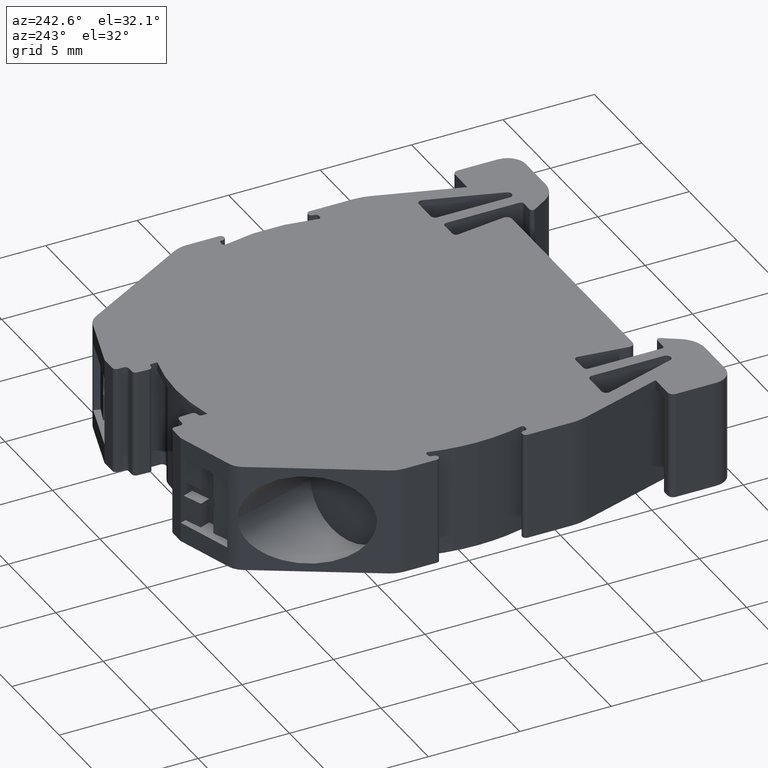
[diagram: clean part render]
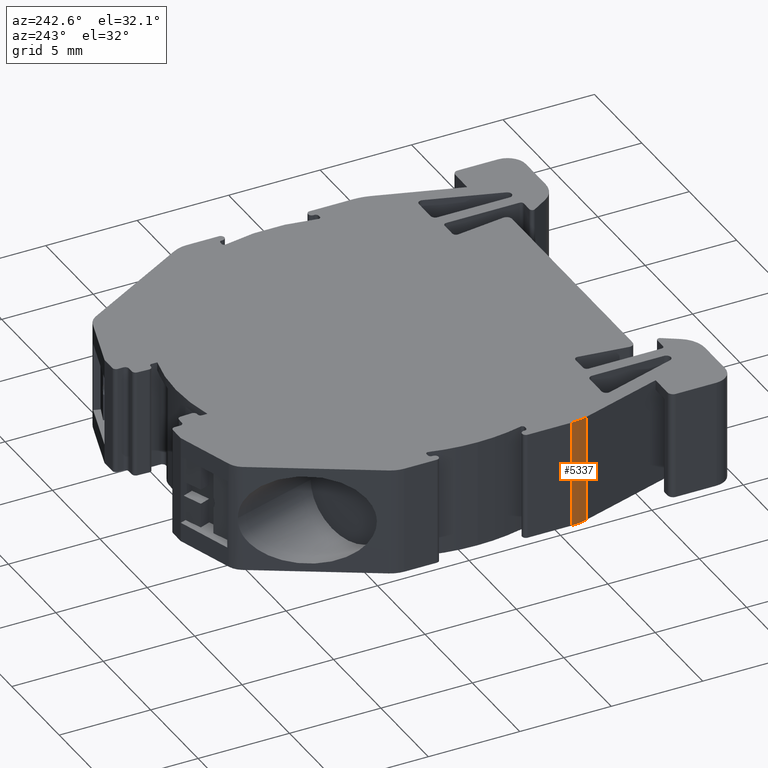
[diagram: same view with one face highlighted and labeled with its STEP entity id]
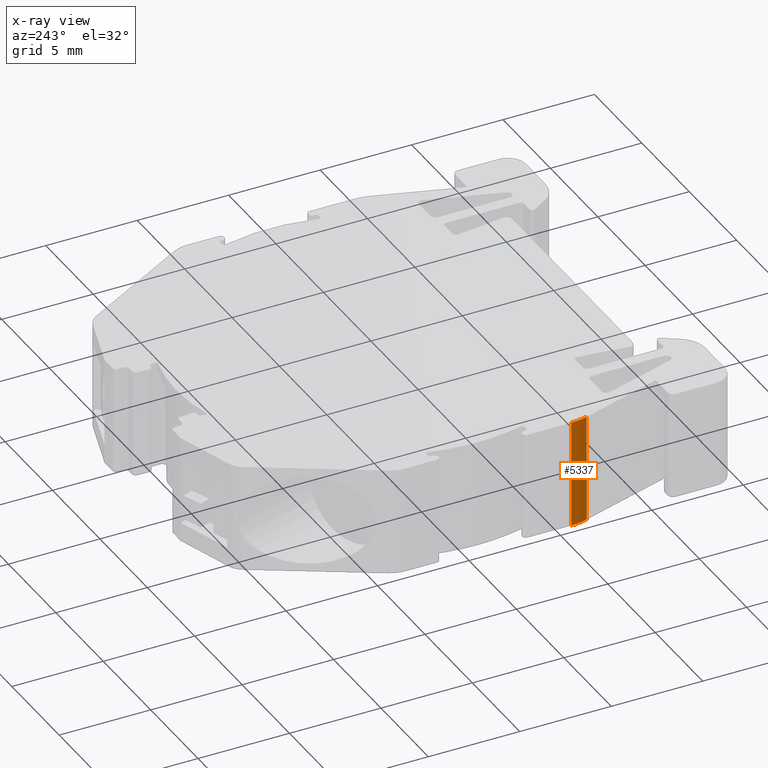
[diagram: x-ray of the same camera — body ghosted, the highlighted face saturated]
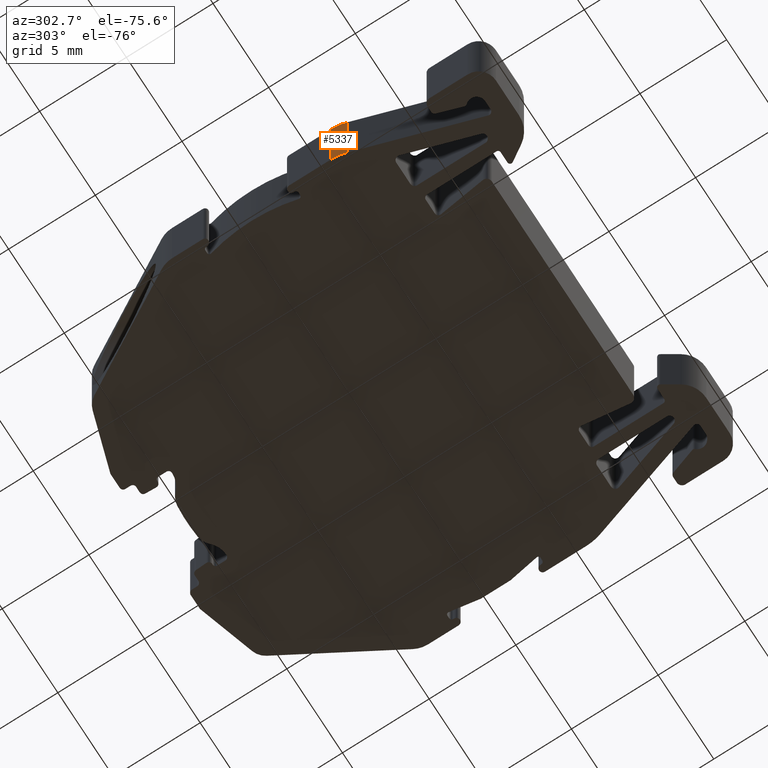
[diagram: same view with one face highlighted and labeled with its STEP entity id]
A machine part, auxiliary view. The second image highlights one B-rep face of the part: STEP entity #5337.
The next image is the same camera in x-ray: the body ghosted, the highlighted face saturated — about 0% of this face is hidden behind the body in this view.
A second angle (auxiliary view) of the same face is appended — the face is thin or edge-on in the first view.
In plain terms, the highlighted cylindrical surface (partial cylindrical patch) has radius 3 mm, axis along (0, 0, -1).
Its self-contained STEP definition (entity closure, byte-faithful):
#321 = DIRECTION ( 'NONE',  ( -1.000000000000000000, 0.0000000000000000000, 0.0000000000000000000 ) ) ;
#361 = CARTESIAN_POINT ( 'NONE',  ( 282.7859378434549700, 439.5186612704554800, -45.43000000000000000 ) ) ;
#362 = DIRECTION ( 'NONE',  ( 0.0000000000000000000, 0.0000000000000000000, -1.000000000000000000 ) ) ;
#414 = CARTESIAN_POINT ( 'NONE',  ( 282.7859378434549700, 439.5186612704554800, -51.32999999999999800 ) ) ;
#427 = DIRECTION ( 'NONE',  ( 0.0000000000000000000, 0.0000000000000000000, -1.000000000000000000 ) ) ;
#446 = DIRECTION ( 'NONE',  ( -1.000000000000000000, 0.0000000000000000000, 0.0000000000000000000 ) ) ;
#582 = LINE ( 'NONE', #597, #6312 ) ;
#583 = DIRECTION ( 'NONE',  ( 0.0000000000000000000, 0.0000000000000000000, 1.000000000000000000 ) ) ;
#597 = CARTESIAN_POINT ( 'NONE',  ( 279.7859378434544600, 439.5186611059753500, -12.95259855432815500 ) ) ;
#599 = DIRECTION ( 'NONE',  ( -0.0000000000000000000, -0.0000000000000000000, -1.000000000000000000 ) ) ;
#608 = LINE ( 'NONE', #616, #6314 ) ;
#616 = CARTESIAN_POINT ( 'NONE',  ( 279.9247869912097700, 438.6165438719423300, -12.95259855432815500 ) ) ;
#1750 = ORIENTED_EDGE ( 'NONE', *, *, #5123, .F. ) ;
#1781 = ORIENTED_EDGE ( 'NONE', *, *, #5131, .F. ) ;
#1820 = ORIENTED_EDGE ( 'NONE', *, *, #5049, .T. ) ;
#1822 = ORIENTED_EDGE ( 'NONE', *, *, #5074, .F. ) ;
#1904 = CARTESIAN_POINT ( 'NONE',  ( 279.7859378434545200, 439.5186610237360600, -51.32999999999999800 ) ) ;
#1997 = CARTESIAN_POINT ( 'NONE',  ( 279.7859377455114900, 439.5186611882154500, -45.43000000000000000 ) ) ;
#2003 = CARTESIAN_POINT ( 'NONE',  ( 279.9247869912096000, 438.6165438719427200, -45.43000000000000000 ) ) ;
#2031 = CARTESIAN_POINT ( 'NONE',  ( 279.9247869912096000, 438.6165438719427200, -51.32999999999999800 ) ) ;
#2539 = EDGE_LOOP ( 'NONE', ( #1750, #1820, #1781, #1822 ) ) ;
#2640 = VERTEX_POINT ( 'NONE', #1904 ) ;
#2686 = VERTEX_POINT ( 'NONE', #1997 ) ;
#2699 = VERTEX_POINT ( 'NONE', #2003 ) ;
#2720 = VERTEX_POINT ( 'NONE', #2031 ) ;
#4245 = CARTESIAN_POINT ( 'NONE',  ( 282.7859378434549700, 439.5186612704554800, -12.95259855432815500 ) ) ;
#4249 = DIRECTION ( 'NONE',  ( 0.0000000000000000000, 0.0000000000000000000, -1.000000000000000000 ) ) ;
#4250 = CYLINDRICAL_SURFACE ( 'NONE', #5710, 3.000000000000557800 ) ;
#4263 = DIRECTION ( 'NONE',  ( -1.000000000000000000, 0.0000000000000000000, 0.0000000000000000000 ) ) ;
#4269 = FACE_OUTER_BOUND ( 'NONE', #2539, .T. ) ;
#5049 = EDGE_CURVE ( 'NONE', #2699, #2686, #6207, .T. ) ;
#5074 = EDGE_CURVE ( 'NONE', #2720, #2640, #6281, .T. ) ;
#5123 = EDGE_CURVE ( 'NONE', #2699, #2720, #608, .T. ) ;
#5131 = EDGE_CURVE ( 'NONE', #2640, #2686, #582, .T. ) ;
#5337 = ADVANCED_FACE ( 'NONE', ( #4269 ), #4250, .T. ) ;
#5710 = AXIS2_PLACEMENT_3D ( 'NONE', #4245, #4249, #4263 ) ;
#6182 = AXIS2_PLACEMENT_3D ( 'NONE', #361, #362, #321 ) ;
#6207 = CIRCLE ( 'NONE', #6182, 3.000000000000557800 ) ;
#6248 = AXIS2_PLACEMENT_3D ( 'NONE', #414, #427, #446 ) ;
#6281 = CIRCLE ( 'NONE', #6248, 3.000000000000557800 ) ;
#6312 = VECTOR ( 'NONE', #583, 1000.000000000000000 ) ;
#6314 = VECTOR ( 'NONE', #599, 1000.000000000000000 ) ;